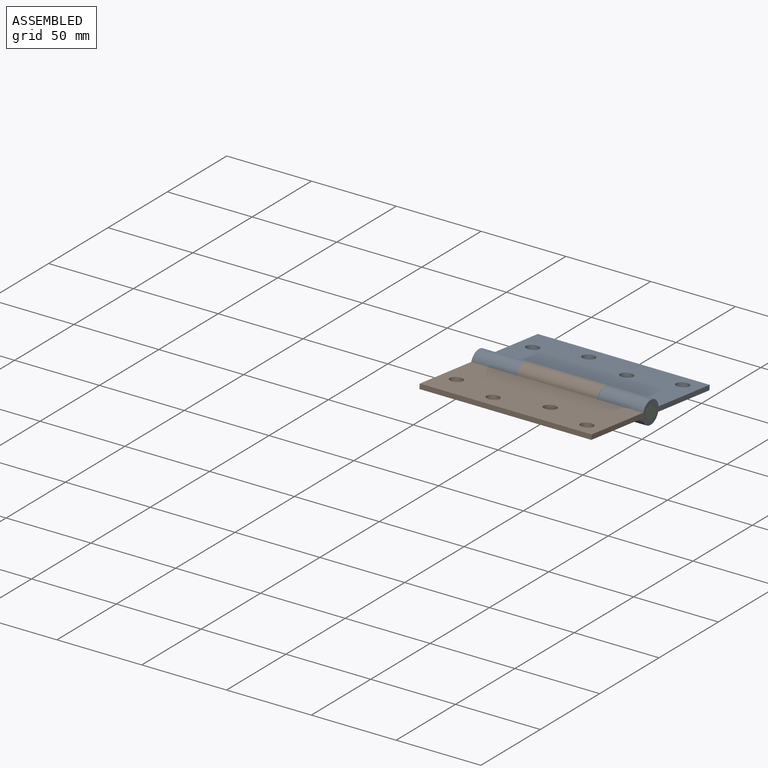
[diagram: assembled view]
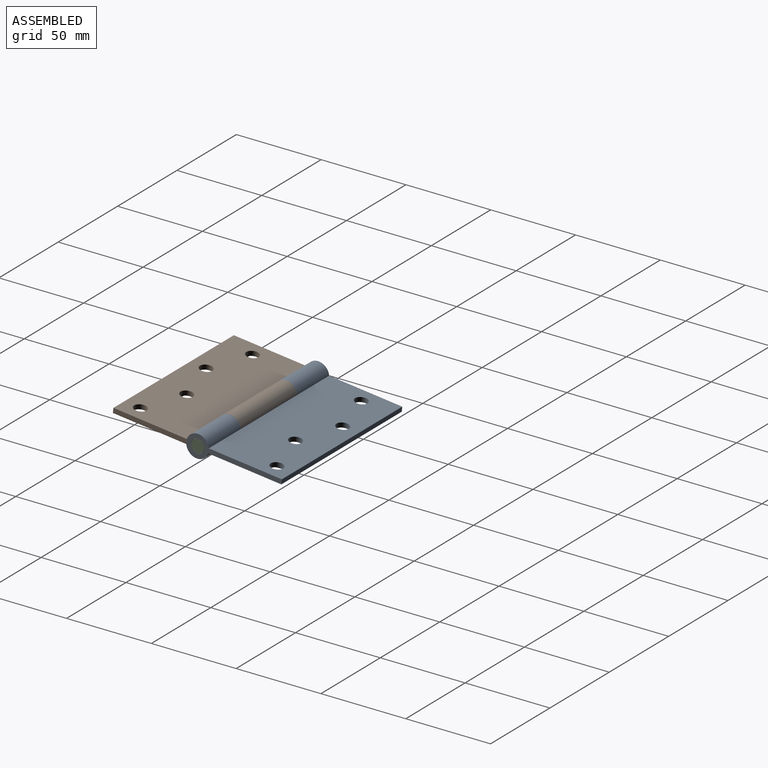
[diagram: assembled view, second angle]
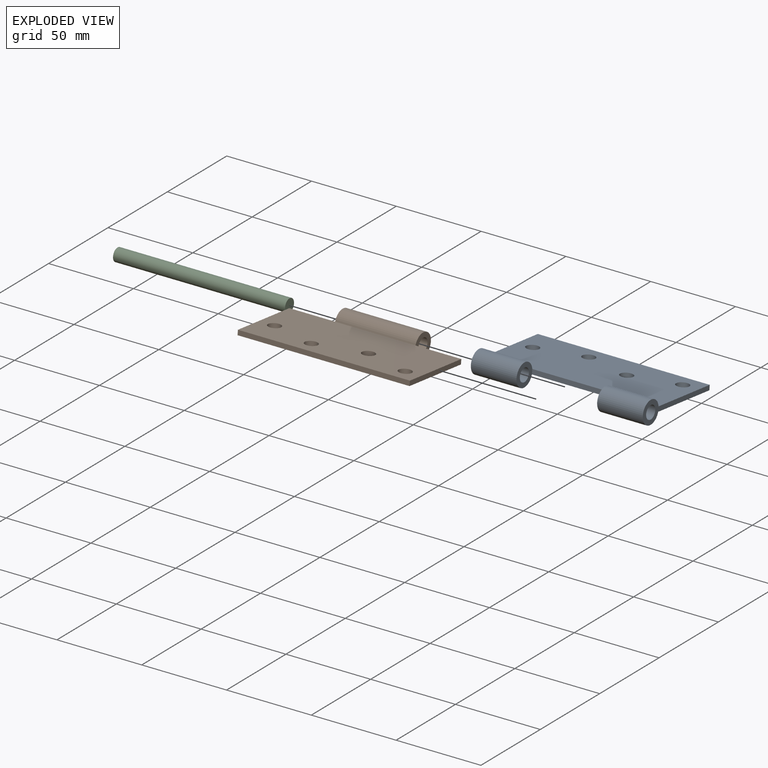
[diagram: exploded view]
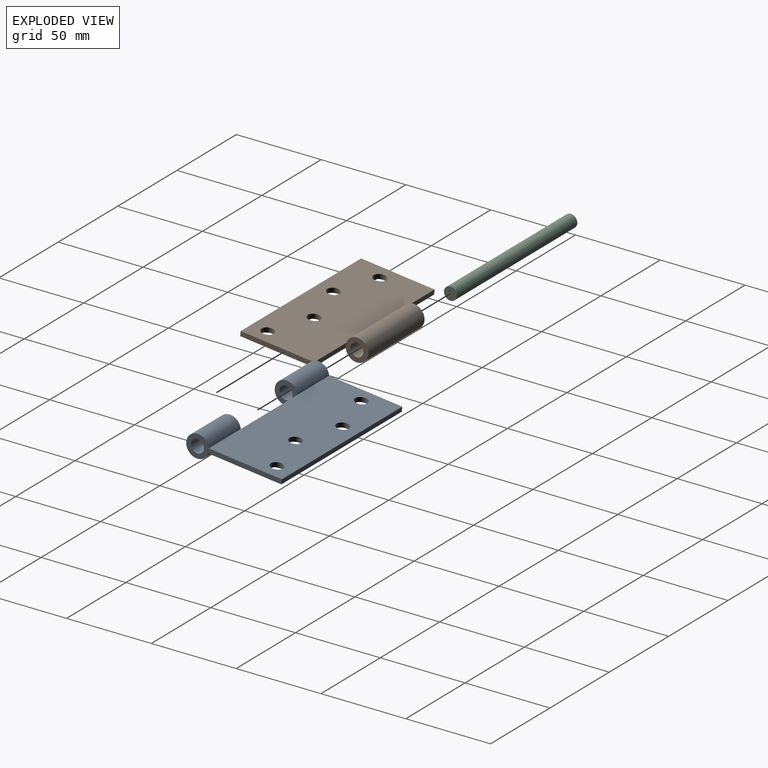
[diagram: exploded view, second angle]
ASSEMBLY  parts=3 mates=3
PART A: 16 faces, bbox 101.4x56.6x13.3 mm
  f0: cylinder r=3.86mm len=26.93mm, axis (-1,0,0), area 653.3mm2, adj f3,f14
  f1: cylinder r=6.65mm len=26.93mm, axis (-1,0,0), area 1050.2mm2, adj f3,f5,f6,f14
  f2: plane 56.56x13.31mm, normal (-1,0,0), area 213.3mm2, adj f4,f5,f6,f11,f12
  f3: plane 56.56x13.31mm, normal (1,0,0), area 213.3mm2, adj f0,f1,f4,f5,f6
  f4: plane 101.41x2.79mm, normal (0,1,0), area 283.3mm2, adj f2,f3,f5,f6
  f5: plane 101.41x43.4mm, normal (0,0,1), area 4230.9mm2, adj f1,f2,f3,f4,f7,f8,f9,f10
  f6: plane 101.41x43.4mm, normal (0,0,-1), area 4230.9mm2, adj f1,f2,f3,f4,f7,f8,f9,f10
  f7: cylinder r=3.68mm len=7.35mm, axis (0,0,1), area 64.5mm2, adj f5,f6
  f8: cylinder r=3.68mm len=7.35mm, axis (0,0,1), area 64.5mm2, adj f5,f6
  f9: cylinder r=3.68mm len=7.35mm, axis (0,0,1), area 64.5mm2, adj f5,f6
  f10: cylinder r=3.68mm len=7.35mm, axis (0,0,1), area 64.5mm2, adj f5,f6
  f11: cylinder r=6.65mm len=26.93mm, axis (-1,0,0), area 1050.2mm2, adj f2,f5,f6,f15
  f12: cylinder r=3.86mm len=26.93mm, axis (-1,0,0), area 653.3mm2, adj f2,f15
  f13: plane 47.55x2.79mm, normal (0,-1,0), area 132.9mm2, adj f5,f6,f14,f15
  f14: plane 13.31x13.16mm, normal (-1,0,0), area 92mm2, adj f0,f1,f13
  f15: plane 13.31x13.16mm, normal (1,0,0), area 92mm2, adj f11,f12,f13
PART B: 15 faces, bbox 101.4x56.8x13.3 mm
  f0: plane 26.98x2.79mm, normal (0,-1,0), area 75.4mm2, adj f1,f5,f6,f8
  f1: plane 43.6x2.79mm, normal (-1,0,0), area 121.8mm2, adj f0,f4,f5,f6
  f2: plane 26.99x2.79mm, normal (0,-1,0), area 75.4mm2, adj f3,f5,f6,f7
  f3: plane 43.6x2.79mm, normal (1,0,0), area 121.8mm2, adj f2,f4,f5,f6
  f4: plane 101.41x2.79mm, normal (0,1,0), area 283.3mm2, adj f1,f3,f5,f6
  f5: plane 101.41x43.6mm, normal (0,0,1), area 4251.5mm2, adj f0,f1,f2,f3,f4,f10,f11,f12
  f6: plane 101.41x43.6mm, normal (0,0,-1), area 4251.5mm2, adj f0,f1,f2,f3,f4,f10,f11,f12
  f7: plane 13.31x13.16mm, normal (1,0,0), area 92mm2, adj f2,f9,f10
  f8: plane 13.31x13.16mm, normal (-1,0,0), area 92mm2, adj f0,f9,f10
  f9: cylinder r=3.86mm len=47.43mm, axis (-1,0,0), area 1150.7mm2, adj f7,f8
  f10: cylinder r=6.65mm len=47.43mm, axis (-1,0,0), area 1849.9mm2, adj f5,f6,f7,f8
  f11: cylinder r=3.68mm len=7.35mm, axis (0,0,1), area 64.5mm2, adj f5,f6
  f12: cylinder r=3.68mm len=7.35mm, axis (0,0,1), area 64.5mm2, adj f5,f6
  f13: cylinder r=3.68mm len=7.35mm, axis (0,0,1), area 64.5mm2, adj f5,f6
  f14: cylinder r=3.68mm len=7.35mm, axis (0,0,1), area 64.5mm2, adj f5,f6
PART C: 3 faces, bbox 7.6x101.4x7.6 mm
  f0: cylinder r=3.81mm len=101.41mm, axis (0,-1,0), area 2427.6mm2, adj f1,f2
  f1: plane 7.62x7.62mm, normal (0,1,0), area 45.6mm2, adj f0
  f2: plane 7.62x7.62mm, normal (0,-1,0), area 45.6mm2, adj f0
PLACE A rot(axis=(-1,0,0),6.6deg) t=(-37.27,-5.52,8.86)mm
PLACE B rot(axis=(1,0,0),173.4deg) t=(-37.33,-61.33,18.13)mm
PLACE C rot(axis=(-0.6,-0.6,-0.53),123.9deg) t=(-37.27,-33.37,13.49)mm
MATE cylindrical A.f0 <-> B.f9  axis (1,0,0) through (-61.05,-33.37,13.49)mm
MATE parallel A.f0 <-> B.f9  axis (1,0,0) through (-61.05,-33.37,13.49)mm
MATE cylindrical C.f0 <-> A.f0  axis (1,0,0) through (13.43,-33.37,13.49)mm
